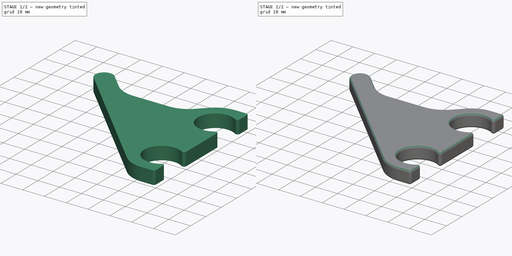
[diagram: build sequence overview — one tinted view per stage of 2, left to right]
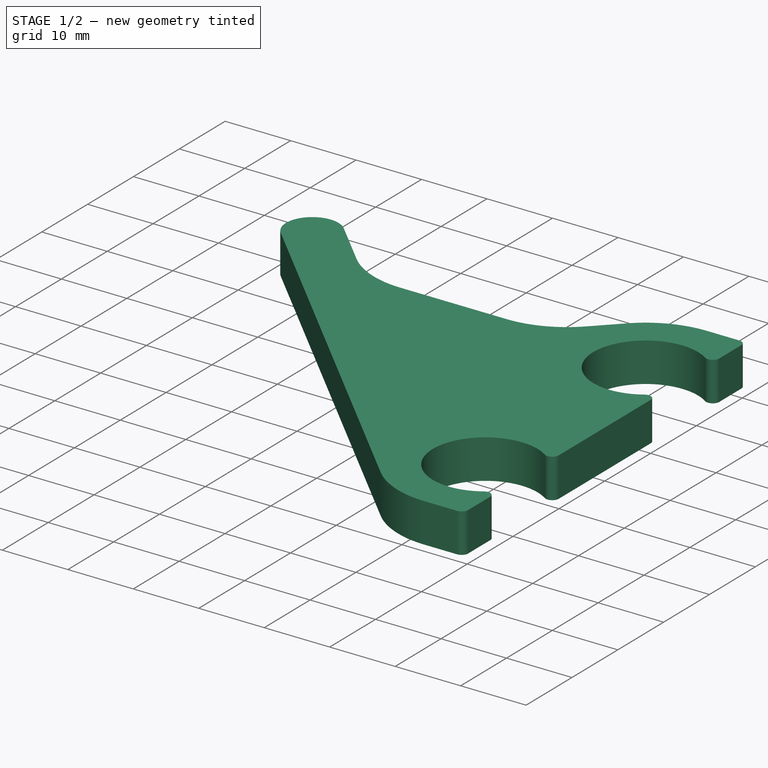
[diagram: stage 1 of 2 — iso view after this stage's code; geometry added in this stage tinted green]
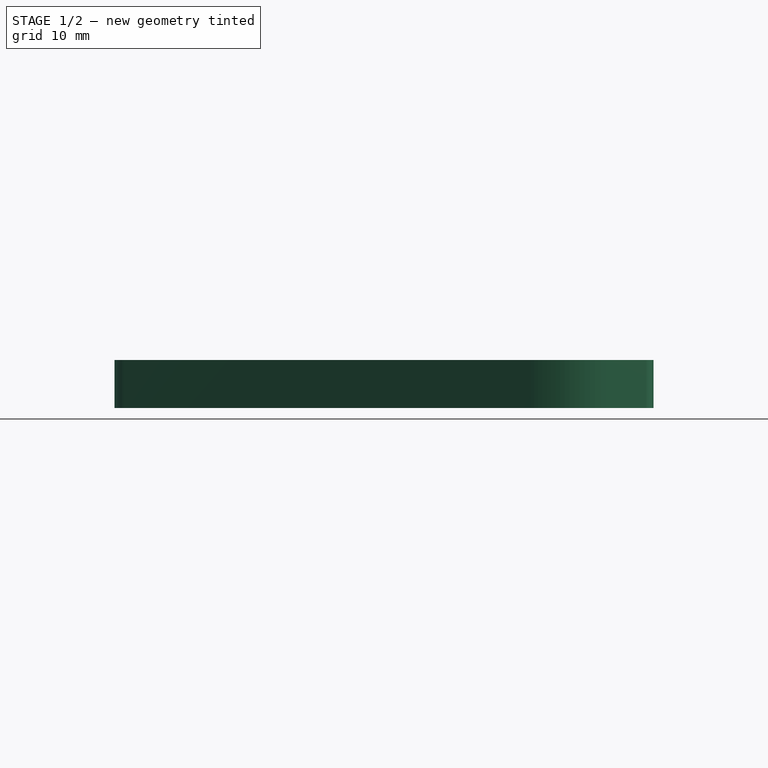
[diagram: stage 1 of 2 — front view after this stage's code; geometry added in this stage tinted green]
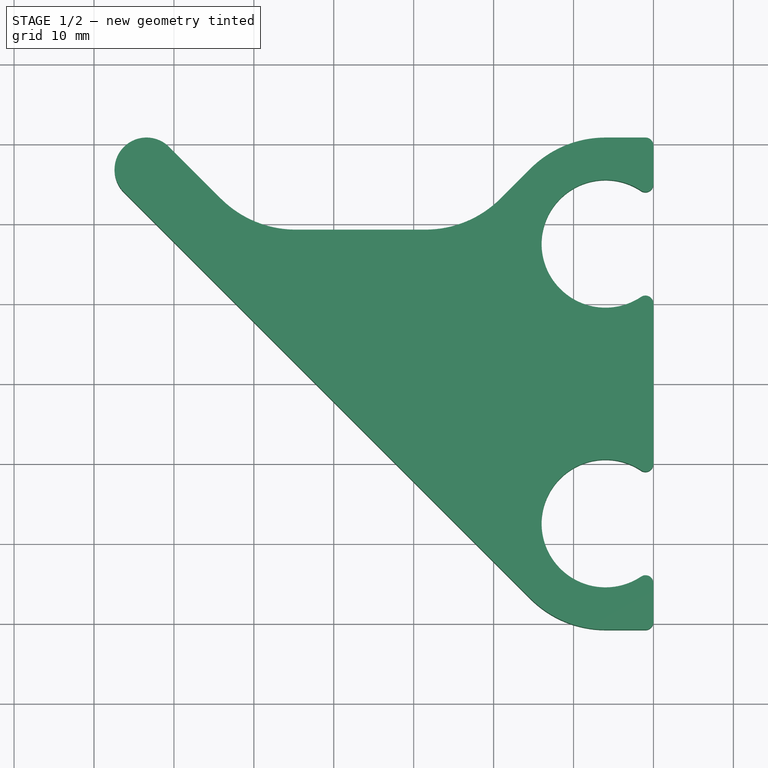
[diagram: stage 1 of 2 — top view after this stage's code; geometry added in this stage tinted green]
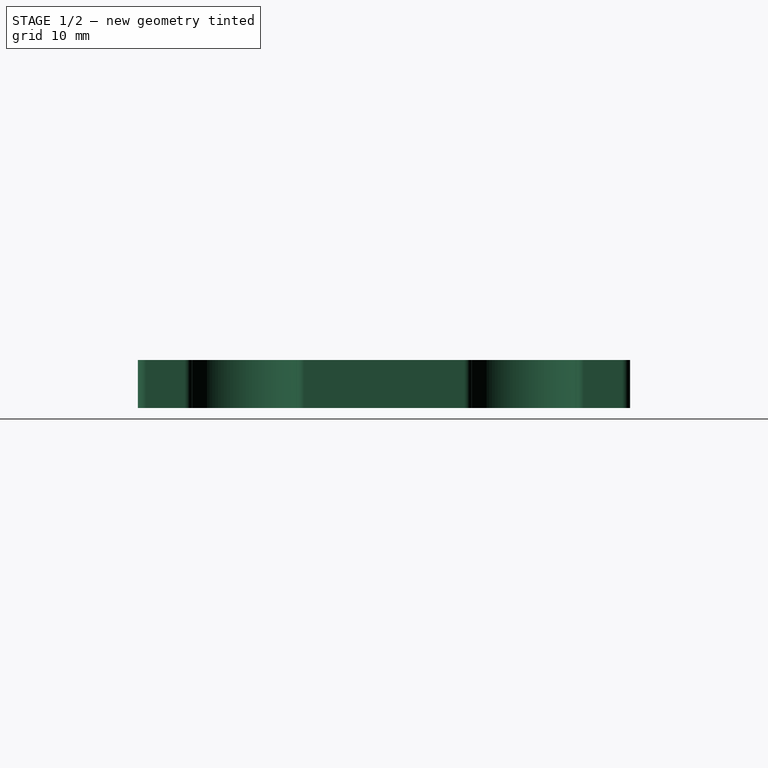
[diagram: stage 1 of 2 — right view after this stage's code; geometry added in this stage tinted green]
FCSTD DOCUMENT  (FreeCAD 0.18R15969 (Git))
Label: cable_holder
License: All rights reserved
LicenseURL: http://en.wikipedia.org/wiki/All_rights_reserved
objects: PartDesign::Fillet×2, Sketcher::SketchObject×1, PartDesign::Pad×1, PartDesign::Body×1
note: 6 computed .brp shape members not serialized (recipe doc carries the construction recipe); baked Part::Feature solids carry a one-line shape summary decoded from their .brp

FEATURE [Sketcher::SketchObject] Sketch
  MapMode = 5
  Support = -> [XY_Plane]
  sketch-geometry (20):
    g0: LineSegment [constr] StartX=0 StartY=17.5 StartZ=0 EndX=-6 EndY=17.5 EndZ=0
    g1: LineSegment [constr] StartX=0 StartY=-17.5 StartZ=0 EndX=-6 EndY=-17.5 EndZ=0
    g2: ArcOfCircle CenterX=-6 CenterY=17.5 CenterZ=0 NormalX=0 NormalY=0 NormalZ=1 AngleXU=0 Radius=8 StartAngle=0.722734 EndAngle=5.56045
    g3: ArcOfCircle CenterX=-6 CenterY=-17.5 CenterZ=0 NormalX=0 NormalY=0 NormalZ=1 AngleXU=0 Radius=8 StartAngle=0.722734 EndAngle=5.56045
    g4: LineSegment [constr] StartX=-6 StartY=17.5 StartZ=0 EndX=0 EndY=0 EndZ=0
    g5: LineSegment [constr] StartX=0 StartY=0 StartZ=0 EndX=-6 EndY=-17.5 EndZ=0
    g6: LineSegment StartX=0 StartY=22.7915 StartZ=0 EndX=0 EndY=30.7915 EndZ=0
    g7: LineSegment StartX=1.8e-15 StartY=-22.7915 StartZ=0 EndX=0 EndY=-30.7915 EndZ=0
    g8: LineSegment StartX=0 StartY=30.7915 StartZ=0 EndX=-6 EndY=30.7915 EndZ=0
    g9: LineSegment StartX=0 StartY=-30.7915 StartZ=0 EndX=-6 EndY=-30.7915 EndZ=0
    g10: ArcOfCircle CenterX=-6 CenterY=17.5 CenterZ=0 NormalX=0 NormalY=0 NormalZ=1 AngleXU=0 Radius=13.2915 StartAngle=1.5708 EndAngle=2.35619
    g11: LineSegment StartX=-15.3985 StartY=26.8985 StartZ=0 EndX=-19.1402 EndY=23.1569 EndZ=0
    g12: LineSegment StartX=-28.5387 StartY=19.2639 StartZ=0 EndX=-44.7417 EndY=19.2639 EndZ=0
    g13: LineSegment StartX=-54.1402 StartY=23.1569 StartZ=0 EndX=-60.6032 EndY=29.6199 EndZ=0
    g14: LineSegment StartX=-66.2601 StartY=23.9631 StartZ=0 EndX=-15.3985 EndY=-26.8985 EndZ=0
    g15: ArcOfCircle CenterX=-6 CenterY=-17.5 CenterZ=0 NormalX=0 NormalY=0 NormalZ=1 AngleXU=0 Radius=13.2915 StartAngle=3.92699 EndAngle=4.71239
    g16: ArcOfCircle CenterX=-63.4317 CenterY=26.7915 CenterZ=0 NormalX=0 NormalY=0 NormalZ=1 AngleXU=0 Radius=4 StartAngle=0.785398 EndAngle=3.92699
    g17: LineSegment StartX=0 StartY=-12.2085 StartZ=0 EndX=0 EndY=12.2085 EndZ=0
    g18: ArcOfCircle CenterX=-44.7417 CenterY=32.5554 CenterZ=0 NormalX=0 NormalY=0 NormalZ=1 AngleXU=0 Radius=13.2915 StartAngle=3.92699 EndAngle=4.71239
    g19: ArcOfCircle CenterX=-28.5387 CenterY=32.5554 CenterZ=0 NormalX=0 NormalY=0 NormalZ=1 AngleXU=0 Radius=13.2915 StartAngle=4.71239 EndAngle=5.49779
  constraints (53):
    c: PointOnObject(g0,g-2)
    c: Horizontal(g0)
    c: PointOnObject(g1,g-2)
    c: Horizontal(g1)
    c: Coincident(g2,g0)
    c: PointOnObject(g2,g-2)
    c: PointOnObject(g2,g-2)
    c: Coincident(g3,g1)
    c: PointOnObject(g3,g-2)
    c: PointOnObject(g3,g-2)
    c: Equal(g0,g1)
    c: Equal(g2,g3)
    c: Radius(g2) = 8
    c: DistanceX(g0,g0) = 6
    c: Coincident(g4,g2)
    c: Coincident(g4,g-1)
    c: Coincident(g5,g-1)
    c: Coincident(g5,g3)
    c: Equal(g4,g5)
    c: Coincident(g6,g2)
    c: PointOnObject(g6,g-2)
    c: Coincident(g7,g3)
    c: PointOnObject(g7,g-2)
    c: Equal(g6,g7)
    c: Coincident(g8,g6)
    c: Coincident(g9,g7)
    c: Horizontal(g8)
    c: Horizontal(g9)
    c: Coincident(g10,g2)
    c: Tangent(g10,g8) = -1.5708
    c: Tangent(g11,g10) = -1.5708
    c: Horizontal(g12)
    c: Tangent(g14,g15) = -1.5708
    c: Tangent(g9,g15) = 1.5708
    c: Coincident(g15,g3)
    c: Angle(g-2,g14) = 0.785398
    c: Parallel(g13,g14)
    c: Tangent(g16,g13) = -1.5708
    c: Tangent(g16,g14) = -1.5708
    c: Perpendicular(g14,g11)
    c: Distance(g13,g14) = 8
    c: DistanceY(g6,g6) = 8
    c: DistanceY(g3,g2) = 35
    c: Coincident(g17,g3)
    c: Coincident(g17,g2)
    c: DistanceY(g16,g8) = 4
    c: Tangent(g13,g18) = 1.5708
    c: Tangent(g12,g18) = 1.5708
    c: Tangent(g12,g19) = 1.5708
    c: Tangent(g11,g19) = 1.5708
    c: Equal(g18,g19)
    c: Equal(g19,g10)
    c: DistanceX(g13,g11) = 35
FEATURE [PartDesign::Pad] Pad
  Length = 6
  Length2 = 100
  Profile = -> Sketch
  Refine = true
  Type = 0
FEATURE [PartDesign::Fillet] Fillet
  Base = -> Pad [Edge2,Edge14,Edge1,Edge5,Edge8,Edge11]
  BaseFeature = -> Pad
  Radius = 1
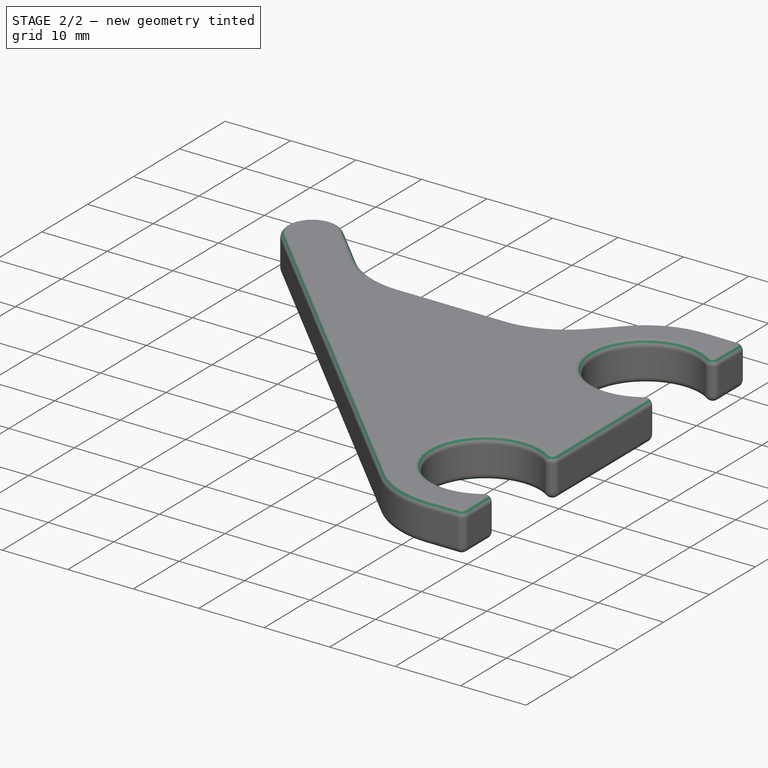
[diagram: stage 2 of 2 — iso view after this stage's code; geometry added in this stage tinted green]
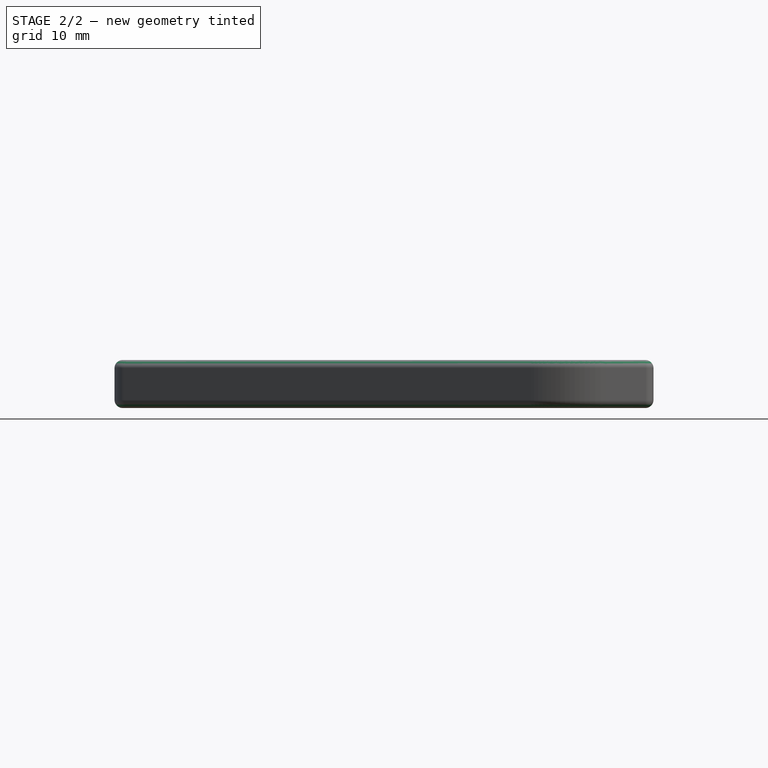
[diagram: stage 2 of 2 — front view after this stage's code; geometry added in this stage tinted green]
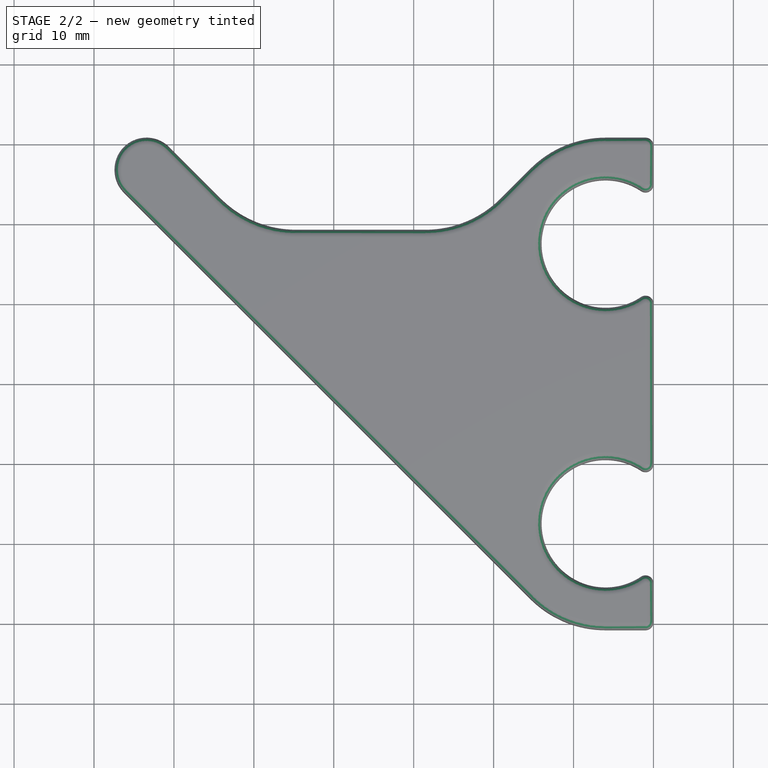
[diagram: stage 2 of 2 — top view after this stage's code; geometry added in this stage tinted green]
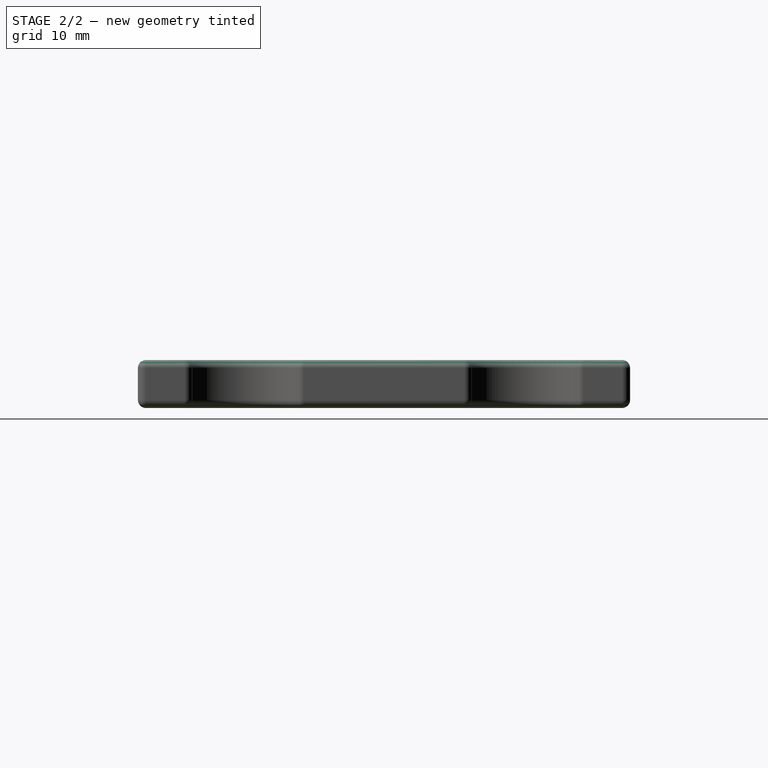
[diagram: stage 2 of 2 — right view after this stage's code; geometry added in this stage tinted green]
FEATURE [PartDesign::Fillet] Fillet001
  Base = -> Fillet [Face5,Face2]
  BaseFeature = -> Fillet
  Radius = 1
FEATURE [PartDesign::Body] Body
  Group = -> [Sketch,Pad,Fillet,Fillet001]
  Origin = -> Origin
  Tip = -> Fillet001
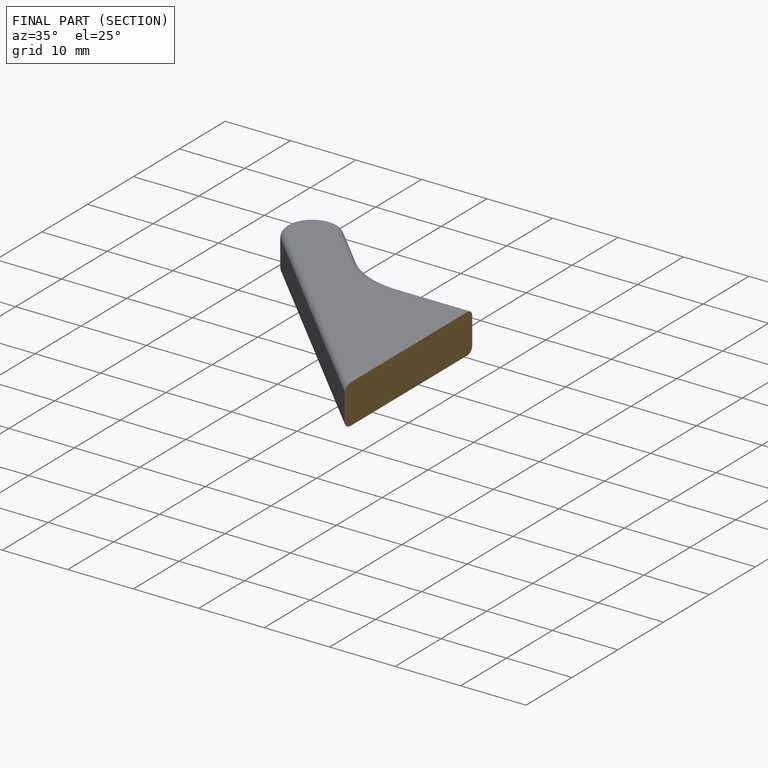
[diagram: finished part — half-section view (interior)]
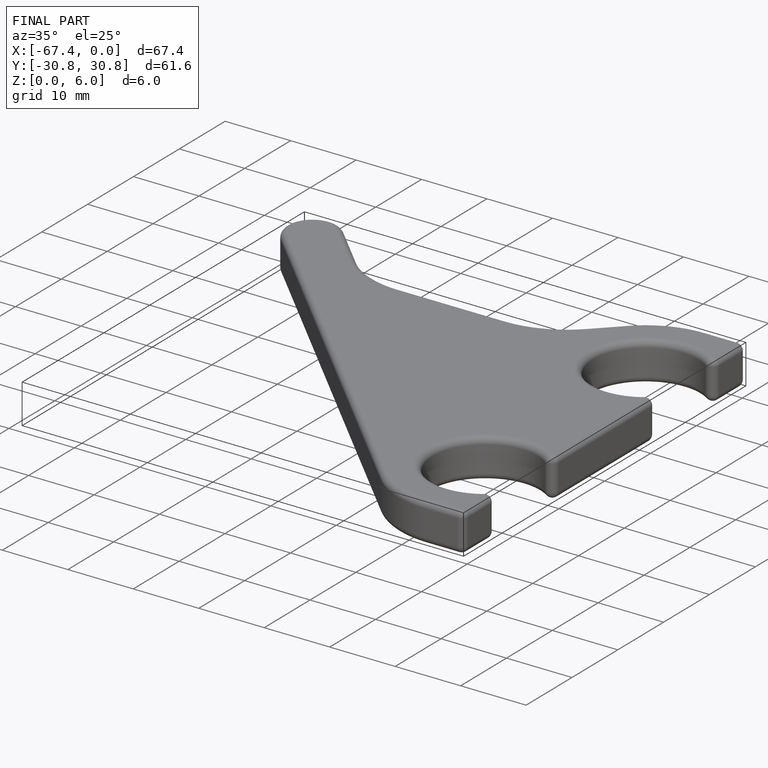
[diagram: finished part — iso view with bounding-box wireframe]
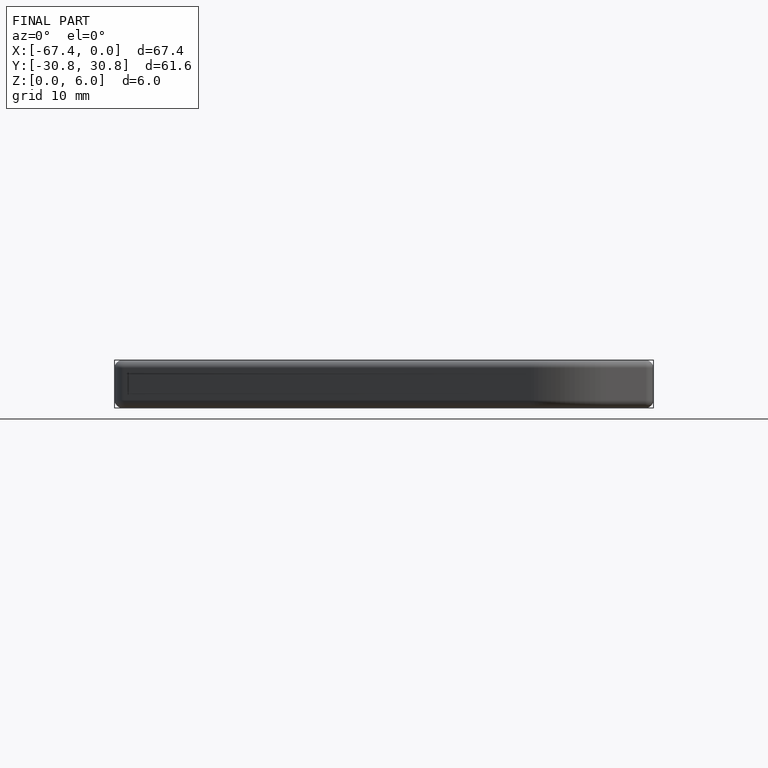
[diagram: finished part — front view with bounding-box wireframe]
